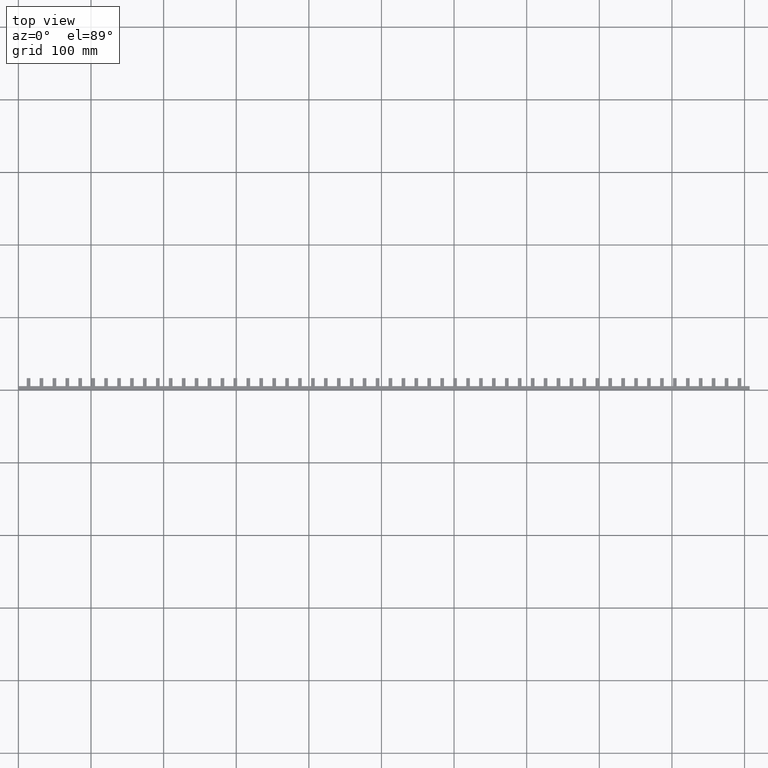
[diagram: clean part render]
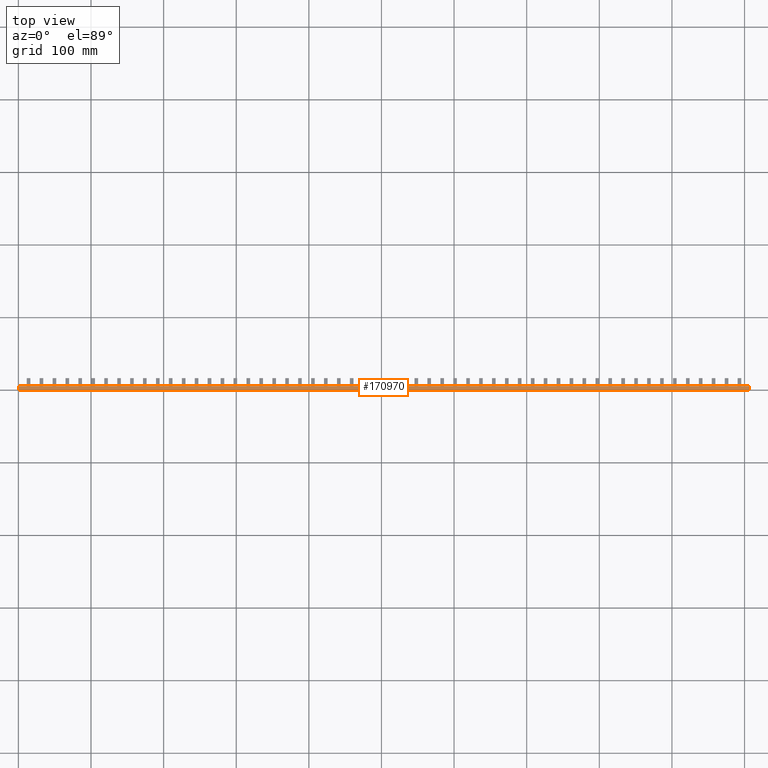
[diagram: same view with one face highlighted and labeled with its STEP entity id]
A machine part, top view. The second image highlights one B-rep face of the part: STEP entity #170970.
In plain terms, the highlighted planar face has unit normal (0, -0, 1).
Its self-contained STEP definition (entity closure, byte-faithful):
#75980=CARTESIAN_POINT('',(7.00000000000001,0.,0.));
#75990=DIRECTION('',(0.,0.,-1.));
#76000=VECTOR('',#75990,1.);
#76010=LINE('',#75980,#76000);
#76020=CARTESIAN_POINT('',(7.00000000000001,0.,-2.5));
#76030=VERTEX_POINT('',#76020);
#76040=CARTESIAN_POINT('',(7.00000000000001,0.,-1009.5));
#76050=VERTEX_POINT('',#76040);
#76060=EDGE_CURVE('',#76030,#76050,#76010,.T.);
#93800=CARTESIAN_POINT('',(7.00000000000001,0.,-2.5));
#93810=DIRECTION('',(0.,-1.,0.));
#93820=VECTOR('',#93810,1.);
#93830=LINE('',#93800,#93820);
#93840=CARTESIAN_POINT('',(7.00000000000001,5.24867660580521,-2.5));
#93850=VERTEX_POINT('',#93840);
#93860=EDGE_CURVE('',#93850,#76030,#93830,.T.);
#145620=CARTESIAN_POINT('',(7.00000000000001,5.24867660580521,-1009.5));
#145630=VERTEX_POINT('',#145620);
#145660=CARTESIAN_POINT('',(7.00000000000001,0.,-1009.5));
#145670=DIRECTION('',(0.,1.,0.));
#145680=VECTOR('',#145670,1.);
#145690=LINE('',#145660,#145680);
#145700=EDGE_CURVE('',#76050,#145630,#145690,.T.);
#170810=CARTESIAN_POINT('',(7.00000000000001,1.09999999999991,-1009.5));
#170820=DIRECTION('',(-1.,0.,0.));
#170830=DIRECTION('',(0.,-1.,0.));
#170840=AXIS2_PLACEMENT_3D('',#170810,#170820,#170830);
#170850=PLANE('',#170840);
#170860=ORIENTED_EDGE('',*,*,#145700,.F.);
#170870=CARTESIAN_POINT('',(7.00000000000001,5.24867660580521,0.));
#170880=DIRECTION('',(0.,0.,-1.));
#170890=VECTOR('',#170880,1.);
#170900=LINE('',#170870,#170890);
#170910=EDGE_CURVE('',#93850,#145630,#170900,.T.);
#170920=ORIENTED_EDGE('',*,*,#170910,.T.);
#170930=ORIENTED_EDGE('',*,*,#93860,.F.);
#170940=ORIENTED_EDGE('',*,*,#76060,.F.);
#170950=EDGE_LOOP('',(#170940,#170930,#170920,#170860));
#170960=FACE_OUTER_BOUND('',#170950,.T.);
#170970=ADVANCED_FACE('',(#170960),#170850,.T.);